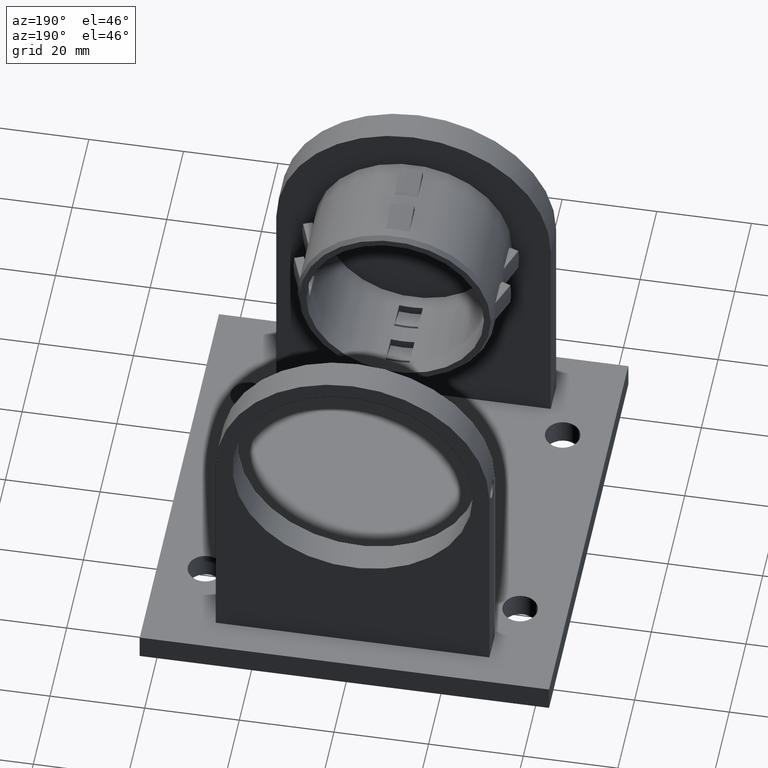
[diagram: clean part render]
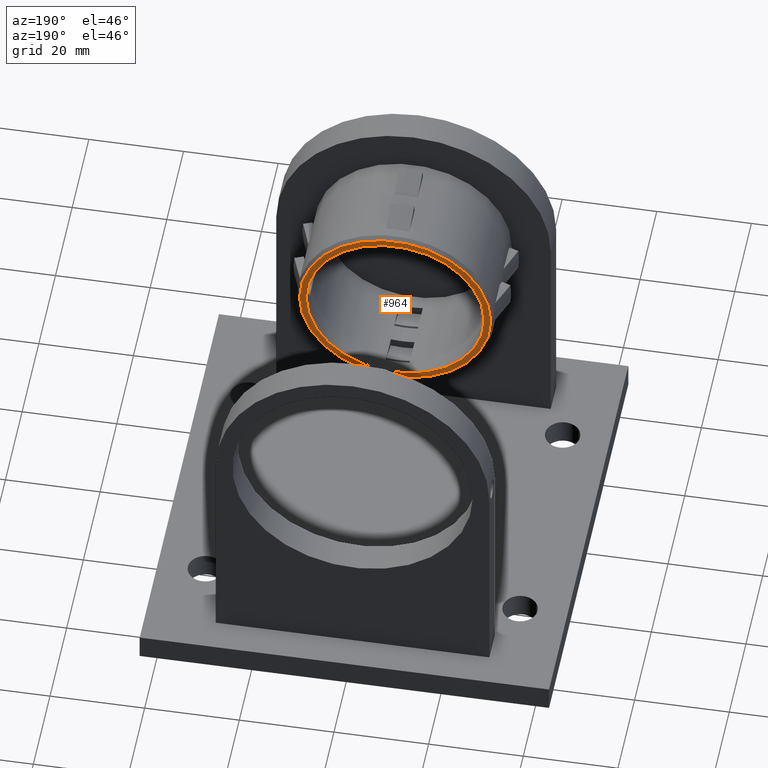
[diagram: same view with one face highlighted and labeled with its STEP entity id]
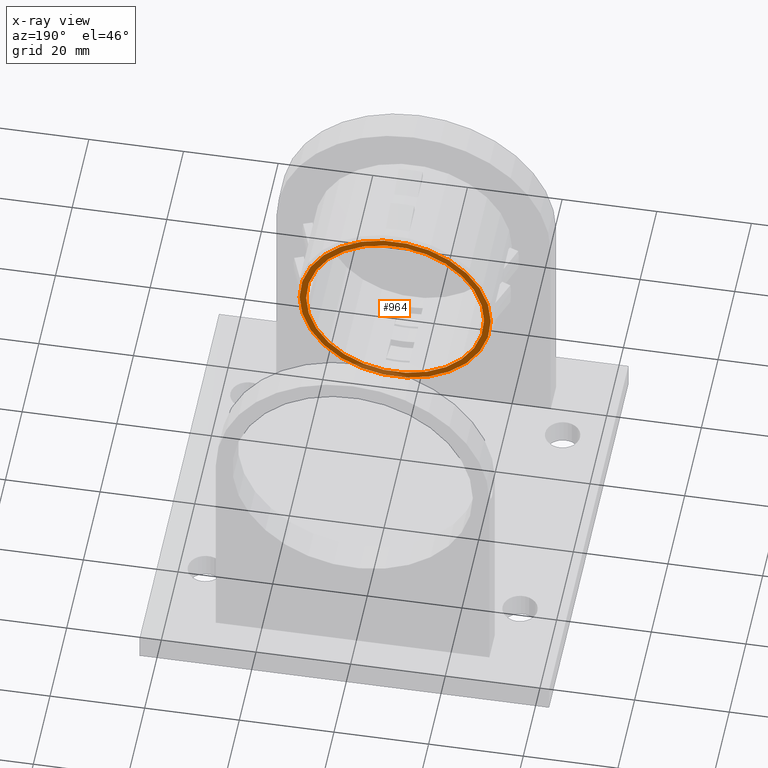
[diagram: x-ray of the same camera — body ghosted, the highlighted face saturated]
A machine part, auxiliary view. The second image highlights one B-rep face of the part: STEP entity #964.
The next image is the same camera in x-ray: the body ghosted, the highlighted face saturated — about 7% of this face is hidden behind the body in this view.
In plain terms, the highlighted planar face has unit normal (-0, 1, -0).
Its self-contained STEP definition (entity closure, byte-faithful):
#964=ADVANCED_FACE('',(#2009,#2011),#2013,.T.);
#2009=FACE_BOUND('',#2010,.T.);
#2010=EDGE_LOOP('',(#2767));
#2011=FACE_BOUND('',#2012,.T.);
#2012=EDGE_LOOP('',(#2768));
#2013=PLANE('',#2014);
#2014=AXIS2_PLACEMENT_3D('',#2015,#2016,#2017);
#2015=CARTESIAN_POINT('',(0.,28.5,0.));
#2016=DIRECTION('',(-0.,1.,0.));
#2017=DIRECTION('',(1.,0.,0.));
#2767=ORIENTED_EDGE('',*,*,#3167,.T.);
#2768=ORIENTED_EDGE('',*,*,#3106,.T.);
#3106=EDGE_CURVE('',#3541,#3541,#3542,.F.);
#3167=EDGE_CURVE('',#3653,#3653,#3654,.T.);
#3541=VERTEX_POINT('',#4632);
#3542=CIRCLE('',#4633,18.8);
#3653=VERTEX_POINT('',#4889);
#3654=CIRCLE('',#4890,20.2);
#4632=CARTESIAN_POINT('',(18.8,28.5,0.));
#4633=AXIS2_PLACEMENT_3D('',#4634,#4635,#4636);
#4634=CARTESIAN_POINT('',(0.,28.5,0.));
#4635=DIRECTION('',(-0.,1.,0.));
#4636=DIRECTION('',(1.,0.,0.));
#4889=CARTESIAN_POINT('',(20.2,28.5,2.47378653427765E-015));
#4890=AXIS2_PLACEMENT_3D('',#4891,#4892,#4893);
#4891=CARTESIAN_POINT('',(0.,28.5,0.));
#4892=DIRECTION('',(-0.,1.,0.));
#4893=DIRECTION('',(1.,0.,0.));